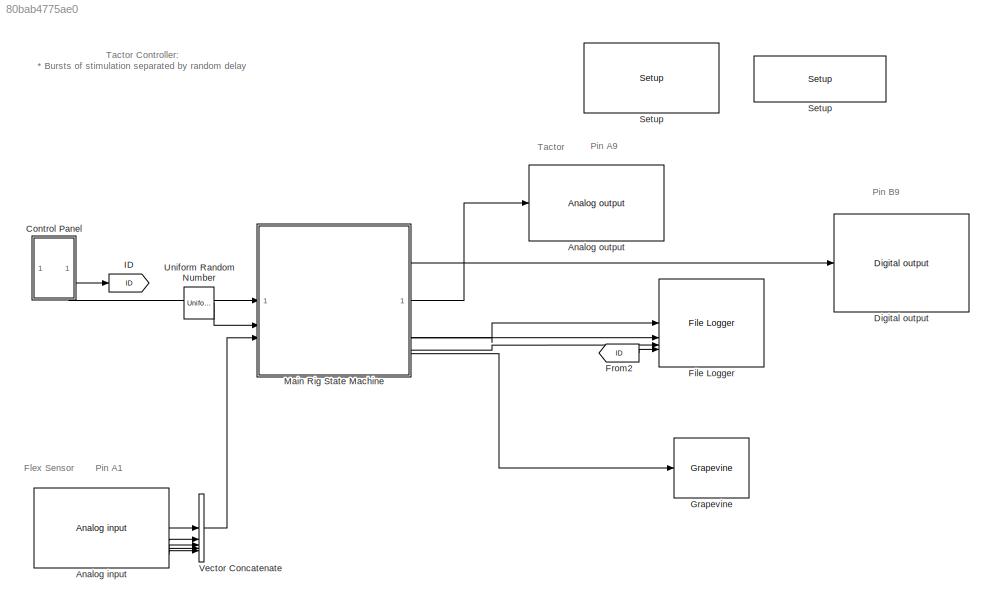
MODEL slx_80bab4775ae0
KIND model
CONFIG AbsTol = auto
CONFIG EnableMultiTasking = on
CONFIG FixedStep = 0.001
CONFIG InitFcn = parambus = Simulink.Bus;\nidx = 0;\n\nidx = idx + 1;\nparambus.Elements(idx) = Simulink.BusElement;\nparambus.Elements(idx).Name = 'StimOn';\nparambus.Elements(idx).DataType = 'uint8';\nparambus.Elements(idx).Dimensions = [1, 1];\n\nidx = idx + 1;\nparambus.Elements(idx) = Simulink.BusElement;\nparambus.Elements(idx).Name = 'DelayPeriod';\nparambus.Elements(idx).DataType = 'uint16';\nparambus.Elements(idx).Dim...<+1229ch>
CONFIG MaxStep = auto
CONFIG MinStep = auto
CONFIG RelTol = 1e-3
CONFIG SampleTimeConstraint = Unconstrained
CONFIG SolverName = FixedStepDiscrete
CONFIG StartTime = 0.0
CONFIG StopTime = Inf
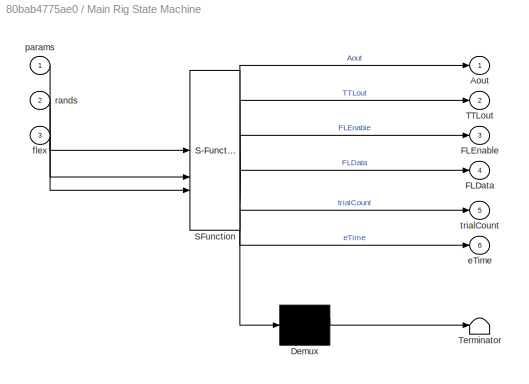
BLOCK [SubSystem]  Main Rig State Machine
  ErrorFcn = Stateflow.Translate.translate
  LibrarySourceBlock = simulink/User-Defined\nFunctions/MATLAB Function
  PermitHierarchicalResolution = ExplicitOnly
  SFBlockType = MATLAB Function
  TreatAsAtomicUnit = on
BLOCK [Demux]  Main Rig State Machine/ Demux 
  Outputs = 1
BLOCK [S-Function]  Main Rig State Machine/ SFunction 
  EnableBusSupport = on
  FunctionName = sf_sfun
  PortCounts = [3 7]
  SFcnIsStateOwnerBlock = off
  SFunctionDeploymentMode = off
  Tag = Stateflow S-Function 2
BLOCK [Terminator]  Main Rig State Machine/ Terminator 
BLOCK [Outport]  Main Rig State Machine/Aout
BLOCK [Outport]  Main Rig State Machine/FLData
  Port = 4
BLOCK [Outport]  Main Rig State Machine/FLEnable
  Port = 3
BLOCK [Outport]  Main Rig State Machine/TTLout
  Port = 2
BLOCK [Outport]  Main Rig State Machine/eTime
  Port = 6
BLOCK [Inport]  Main Rig State Machine/flex
  Port = 3
BLOCK [Inport]  Main Rig State Machine/params
BLOCK [Inport]  Main Rig State Machine/rands
  Port = 2
BLOCK [Outport]  Main Rig State Machine/trialCount
  Port = 5
BLOCK [Reference] Analog input   REF=speedgoatlib_IO191/Analog input 
  SourceBlock = speedgoatlib_IO191/Analog input
  SourceProductName = Simulink Real-Time: Speedgoat I/O Blockset
  SourceType = ad_IO191
BLOCK [Reference] Analog output   REF=speedgoatlib_IO191/Analog output 
  SourceBlock = speedgoatlib_IO191/Analog output
  SourceProductName = Simulink Real-Time: Speedgoat I/O Blockset
  SourceType = da_IO191
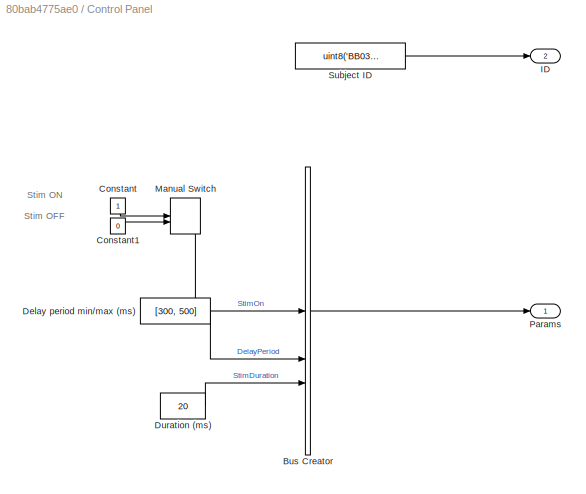
BLOCK [SubSystem] Control Panel
BLOCK [BusCreator] Control Panel/Bus Creator
  DisplayOption = bar
  InheritFromInputs = on
  Inputs = 3
  NonVirtualBus = on
  OutDataTypeStr = Bus: parambus
BLOCK [Constant] Control Panel/Constant
  OutDataTypeStr = uint8
BLOCK [Constant] Control Panel/Constant1
  OutDataTypeStr = uint8
  Value = 0
BLOCK [Constant] Control Panel/Delay period min//max (ms)
  OutDataTypeStr = uint16
  Value = [300, 500]
BLOCK [Constant] Control Panel/Duration (ms)
  OutDataTypeStr = uint16
  Value = 20
BLOCK [Outport] Control Panel/ID
  Port = 2
BLOCK [ManualSwitch] Control Panel/Manual Switch
  CurrentSetting = 0
BLOCK [Outport] Control Panel/Params
BLOCK [Constant] Control Panel/Subject ID
  OutDataTypeStr = uint8
  Value = uint8('BB032')
BLOCK [Reference] Digital output   REF=speedgoatlib_IO191/Digital output 
  SourceBlock = speedgoatlib_IO191/Digital output
  SourceProductName = Simulink Real-Time: Speedgoat I/O Blockset
  SourceType = do_IO191
BLOCK [Reference] File Logger  REF=Lab_Library/File Logger
  SourceBlock = Lab_Library/File Logger
  SourceType = SubSystem
BLOCK [From] From2
  GotoTag = ID
BLOCK [Reference] Grapevine  REF=Lab_Library/Grapevine
  SourceBlock = Lab_Library/Grapevine
  SourceType = SubSystem
BLOCK [Goto] ID
  GotoTag = ID
BLOCK [Reference] Setup  REF=slrealtimeseriallib/Mainboard/Setup
  SourceBlock = slrealtimeseriallib/Mainboard/Setup
  SourceType = Setup
BLOCK [Reference] Setup   REF=speedgoatlib_IO191/Setup 
  SourceBlock = speedgoatlib_IO191/Setup
  SourceProductName = Simulink Real-Time: Speedgoat I/O Blockset
  SourceType = setup_IO191
BLOCK [UniformRandomNumber] Uniform Random Number
  Maximum = [1]
  Minimum = [0]
  SampleTime = .001
BLOCK [Concatenate] Vector Concatenate
  NumInputs = 5
ANNOTATION (root): Tactor Controller: * Bursts of stimulation separated by random delay
ANNOTATION (root): Flex Sensor
ANNOTATION (root): Pin A1
ANNOTATION (root): Pin A9
ANNOTATION (root): Pin B9
ANNOTATION (root): Tactor
ANNOTATION Control Panel: Stim OFF
ANNOTATION Control Panel: Stim ON
LINE  Main Rig State Machine:1 -> Analog output :1
LINE  Main Rig State Machine:2 -> Digital output :1
LINE  Main Rig State Machine:3 -> File Logger:1
LINE  Main Rig State Machine:4 -> File Logger:2
LINE  Main Rig State Machine:5 -> File Logger:3
LINE  Main Rig State Machine:6 -> Grapevine:1
LINE Analog input :1 -> Vector Concatenate:1
LINE Analog input :2 -> Vector Concatenate:2
LINE Analog input :3 -> Vector Concatenate:3
LINE Analog input :4 -> Vector Concatenate:4
LINE Analog input :5 -> Vector Concatenate:5
LINE Control Panel/Bus Creator:1 -> Control Panel/Params:1
LINE Control Panel/Constant1:1 -> Control Panel/Manual Switch:2
LINE Control Panel/Constant:1 -> Control Panel/Manual Switch:1
LINE Control Panel/Delay period min//max (ms):1 -> Control Panel/Bus Creator:2
LINE Control Panel/Duration (ms):1 -> Control Panel/Bus Creator:3
LINE Control Panel/Manual Switch:1 -> Control Panel/Bus Creator:1
LINE Control Panel/Subject ID:1 -> Control Panel/ID:1
LINE Control Panel:1 ->  Main Rig State Machine:1
LINE Control Panel:2 -> ID:1
LINE From2:1 -> File Logger:4
LINE Uniform Random Number:1 ->  Main Rig State Machine:2
LINE Vector Concatenate:1 ->  Main Rig State Machine:3
CHART  Main Rig State Machine states=1 transitions=1
  STATE_LABEL 'eML_blk_kernel()'
  STATE_LABEL 'SCRIPT:\nfunction [Aout, TTLout, FLEnable, FLData, trialCount, eTime] = TaskControl(params, rands, flex)\n\npersistent exp_state trial_state exp_time trial_time trial_count intparams extparams...\n           FLStruct\n\nif (isempty(exp_state))\n    exp_state = uint8(0);           % Experiment state variable\n    trial_state = uint8(0);         % Trial state variable\n    exp_time = uint32(0);           % C...<+3608ch>'
CHART  states=0 transitions=0
